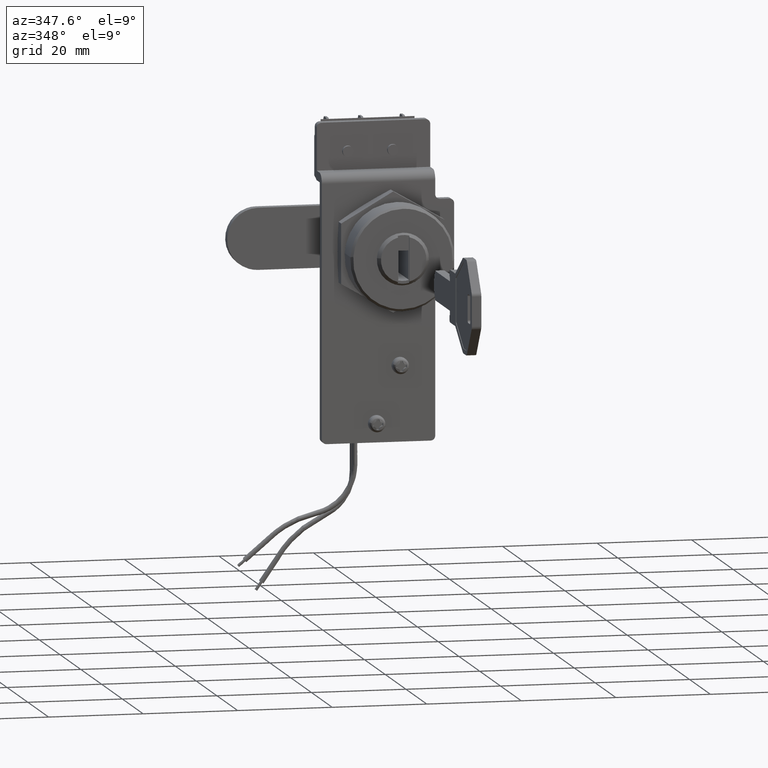
[diagram: clean part render]
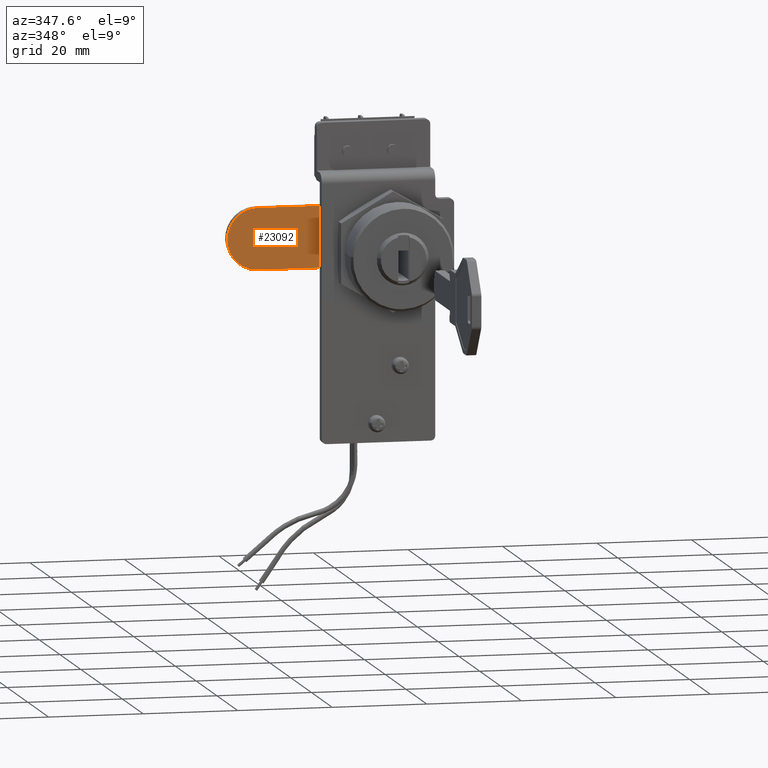
[diagram: same view with one face highlighted and labeled with its STEP entity id]
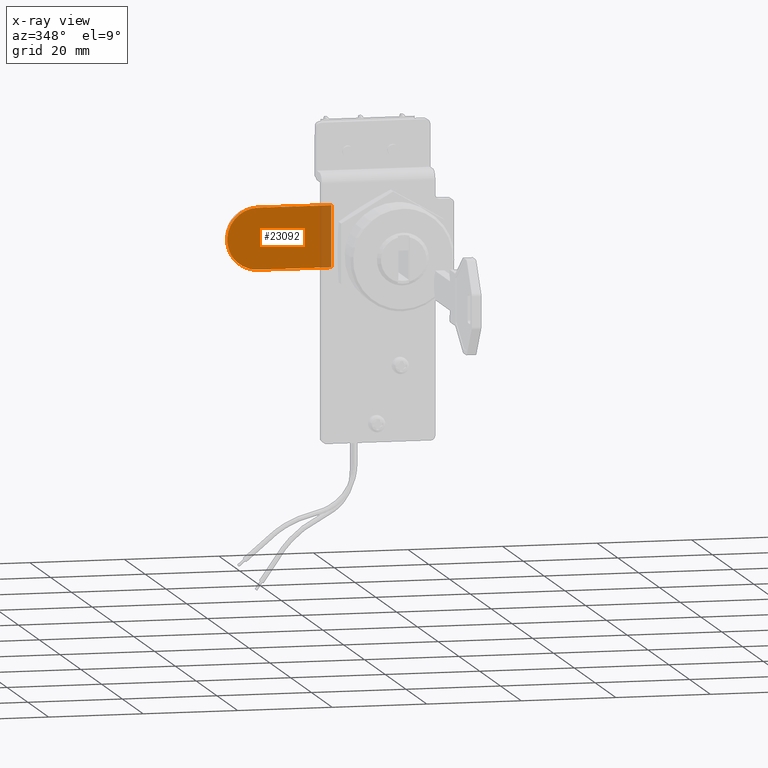
[diagram: x-ray of the same camera — body ghosted, the highlighted face saturated]
A machine part, auxiliary view. The second image highlights one B-rep face of the part: STEP entity #23092.
The next image is the same camera in x-ray: the body ghosted, the highlighted face saturated — about 12% of this face is hidden behind the body in this view.
In plain terms, the highlighted face is a freeform B-spline surface patch.
Its self-contained STEP definition (entity closure, byte-faithful):
#23040=CARTESIAN_POINT('',(-6.901100042461718,26.500000000000000,-7.149349974809978));
#23041=CARTESIAN_POINT('',(-6.901100042461718,26.500000000000000,7.149350323484159));
#23042=CARTESIAN_POINT('',(-31.098900547453599,26.500000000000000,-7.149349974809978));
#23043=CARTESIAN_POINT('',(-31.098900547453599,26.500000000000000,7.149350323484159));
#23044=B_SPLINE_SURFACE_WITH_KNOTS('',1,1,((#23040,#23042),(#23041,#23043)),.UNSPECIFIED.,.F.,.F.,.U.,(2,2),(2,2),(0.0,14.298700298294140),(0.0,24.197800504991879),.UNSPECIFIED.);
#23045=CARTESIAN_POINT('',(-23.499999999999549,26.500000000000000,6.499999999993510));
#23046=VERTEX_POINT('',#23045);
#23047=CARTESIAN_POINT('',(-23.499999999999549,26.500000000000000,-6.500000000006500));
#23048=VERTEX_POINT('',#23047);
#23049=CARTESIAN_POINT('',(-23.499999999999549,26.500000000000000,6.499999999993510));
#23050=CARTESIAN_POINT('',(-23.952011770197991,26.500000000000021,6.500065490103108));
#23051=CARTESIAN_POINT('',(-24.776229594594231,26.500000000000011,6.413664991714690));
#23052=CARTESIAN_POINT('',(-26.053160955905138,26.499999999999869,6.026389214707736));
#23053=CARTESIAN_POINT('',(-27.182668143775480,26.500000000000330,5.413742583157026));
#23054=CARTESIAN_POINT('',(-28.259934985916288,26.499999999999780,4.495905466525221));
#23055=CARTESIAN_POINT('',(-29.158739254197599,26.499999999999972,3.329711220275543));
#23056=CARTESIAN_POINT('',(-29.737258401340750,26.499999999999861,2.002543349907305));
#23057=CARTESIAN_POINT('',(-30.007899332413519,26.500000000000181,0.641444669299845));
#23058=CARTESIAN_POINT('',(-30.014463157432989,26.500000000000380,-0.427865536418034));
#23059=CARTESIAN_POINT('',(-29.847624178610971,26.499999999999549,-1.506834942891795));
#23060=CARTESIAN_POINT('',(-29.578765266797451,26.500000000000519,-2.373976864935399));
#23061=CARTESIAN_POINT('',(-29.088027343170051,26.499999999999702,-3.379471247039512));
#23062=CARTESIAN_POINT('',(-28.342800989018940,26.500000000000870,-4.424171883443146));
#23063=CARTESIAN_POINT('',(-27.312942055559429,26.499999999998959,-5.323588883105956));
#23064=CARTESIAN_POINT('',(-26.125135056150881,26.500000000002292,-5.986769517658663));
#23065=CARTESIAN_POINT('',(-24.909175943374120,26.499999999994429,-6.396765790883390));
#23066=CARTESIAN_POINT('',(-23.978601707856800,26.500000000004508,-6.500076586382700));
#23067=CARTESIAN_POINT('',(-23.499999999999549,26.500000000000000,-6.500000000006500));
#23068=B_SPLINE_CURVE_WITH_KNOTS('',3,(#23049,#23050,#23051,#23052,#23053,#23054,#23055,#23056,#23057,#23058,#23059,#23060,#23061,#23062,#23063,#23064,#23065,#23066,#23067),.UNSPECIFIED.,.F.,.U.,(4,1,1,1,1,1,1,1,1,1,1,1,1,1,1,1,4),(0.000000218403937,1.356035108867275,2.472749123054360,3.988358523086117,5.184891356657872,6.700485756820253,8.375594526792643,9.492392008689233,10.848322654452280,11.566267223789280,12.762756979926900,13.560467327968141,14.916516648401430,16.591648070528830,17.628640464666042,18.984683212970310,20.420480377470248),.UNSPECIFIED.);
#23069=EDGE_CURVE('',#23046,#23048,#23068,.T.);
#23070=ORIENTED_EDGE('',*,*,#23069,.T.);
#23071=CARTESIAN_POINT('',(-7.999999999829917,26.500000000000000,-6.500000000006500));
#23072=VERTEX_POINT('',#23071);
#23073=CARTESIAN_POINT('',(-7.999999999829917,26.500000000000000,-6.500000000006500));
#23074=CARTESIAN_POINT('',(-23.499999999999549,26.500000000000000,-6.500000000006500));
#23075=QUASI_UNIFORM_CURVE('',1,(#23073,#23074),.UNSPECIFIED.,.F.,.U.);
#23076=EDGE_CURVE('',#23072,#23048,#23075,.T.);
#23077=ORIENTED_EDGE('',*,*,#23076,.F.);
#23078=CARTESIAN_POINT('',(-7.999999999829917,26.500000000000000,6.499999999993510));
#23079=VERTEX_POINT('',#23078);
#23080=CARTESIAN_POINT('',(-7.999999999829917,26.500000000000000,6.499999999993510));
#23081=CARTESIAN_POINT('',(-7.999999999829917,26.500000000000000,-6.500000000006500));
#23082=QUASI_UNIFORM_CURVE('',1,(#23080,#23081),.UNSPECIFIED.,.F.,.U.);
#23083=EDGE_CURVE('',#23079,#23072,#23082,.T.);
#23084=ORIENTED_EDGE('',*,*,#23083,.F.);
#23085=CARTESIAN_POINT('',(-7.999999999829917,26.500000000000000,6.499999999993510));
#23086=CARTESIAN_POINT('',(-23.499999999999549,26.500000000000000,6.499999999993510));
#23087=QUASI_UNIFORM_CURVE('',1,(#23085,#23086),.UNSPECIFIED.,.F.,.U.);
#23088=EDGE_CURVE('',#23079,#23046,#23087,.T.);
#23089=ORIENTED_EDGE('',*,*,#23088,.T.);
#23090=EDGE_LOOP('',(#23070,#23077,#23084,#23089));
#23091=FACE_OUTER_BOUND('',#23090,.T.);
#23092=ADVANCED_FACE('',(#23091),#23044,.T.);